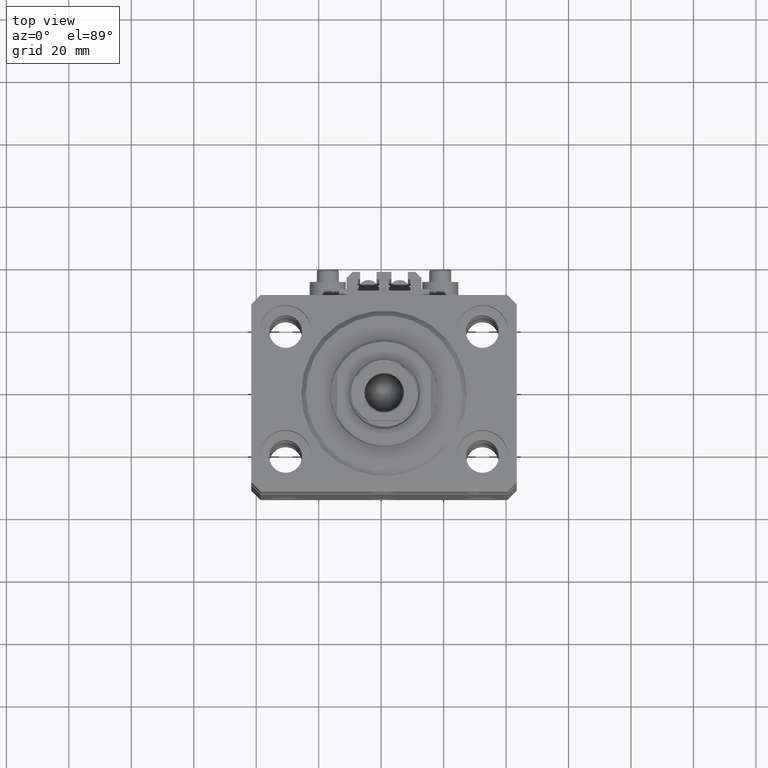
[diagram: clean part render]
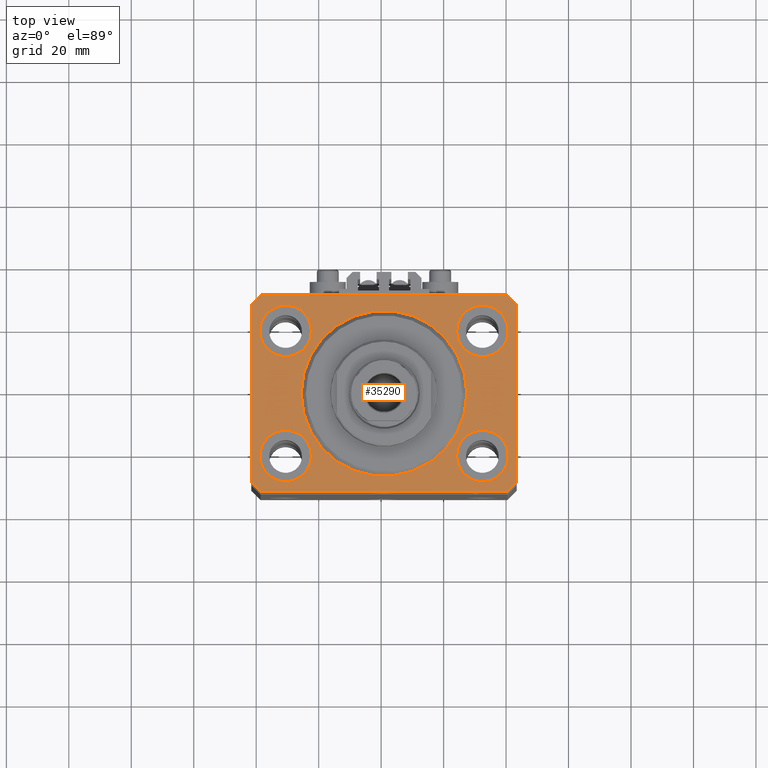
[diagram: same view with one face highlighted and labeled with its STEP entity id]
A machine part, top view. The second image highlights one B-rep face of the part: STEP entity #35290.
In plain terms, the highlighted planar face has unit normal (0, 0, 1).
Its self-contained STEP definition (entity closure, byte-faithful):
#519 = CARTESIAN_POINT ( 'NONE',  ( 31.50000000000000000, -20.00000000000000000, 0.000000000000000000 ) ) ;
#1151 = AXIS2_PLACEMENT_3D ( 'NONE', #25544, #21576, #22075 ) ;
#1292 = CIRCLE ( 'NONE', #33673, 8.250000000000000000 ) ;
#1336 = LINE ( 'NONE', #26042, #22604 ) ;
#1421 = EDGE_CURVE ( 'NONE', #11246, #47351, #35845, .T. ) ;
#1767 = CIRCLE ( 'NONE', #14392, 26.50000000000000355 ) ;
#1924 = VERTEX_POINT ( 'NONE', #16424 ) ;
#2061 = CARTESIAN_POINT ( 'NONE',  ( 31.50000000000000000, 20.00000000000001066, 0.000000000000000000 ) ) ;
#2173 = CARTESIAN_POINT ( 'NONE',  ( -39.50000000000000711, 31.50000000000000000, 0.000000000000000000 ) ) ;
#2760 = CIRCLE ( 'NONE', #1151, 26.50000000000000355 ) ;
#2911 = EDGE_CURVE ( 'NONE', #42928, #13611, #33340, .T. ) ;
#3748 = ORIENTED_EDGE ( 'NONE', *, *, #45577, .T. ) ;
#3991 = FACE_BOUND ( 'NONE', #20719, .T. ) ;
#4124 = VERTEX_POINT ( 'NONE', #25363 ) ;
#4189 = DIRECTION ( 'NONE',  ( 1.000000000000000000, 0.000000000000000000, 0.000000000000000000 ) ) ;
#4370 = CIRCLE ( 'NONE', #32008, 8.250000000000000000 ) ;
#5180 = AXIS2_PLACEMENT_3D ( 'NONE', #519, #48773, #34156 ) ;
#5618 = DIRECTION ( 'NONE',  ( 0.000000000000000000, 0.000000000000000000, 1.000000000000000000 ) ) ;
#5889 = DIRECTION ( 'NONE',  ( 0.000000000000000000, 0.000000000000000000, 1.000000000000000000 ) ) ;
#6591 = CARTESIAN_POINT ( 'NONE',  ( -39.50000000000000711, 31.50000000000000000, 0.000000000000000000 ) ) ;
#7079 = ORIENTED_EDGE ( 'NONE', *, *, #21873, .T. ) ;
#7458 = CARTESIAN_POINT ( 'NONE',  ( 0.000000000000000000, 0.000000000000000000, 0.000000000000000000 ) ) ;
#7514 = CIRCLE ( 'NONE', #26431, 8.250000000000000000 ) ;
#7927 = DIRECTION ( 'NONE',  ( 0.000000000000000000, 0.000000000000000000, 1.000000000000000000 ) ) ;
#8019 = CARTESIAN_POINT ( 'NONE',  ( 42.50000000000051870, 28.49999999999995381, 0.000000000000000000 ) ) ;
#8051 = DIRECTION ( 'NONE',  ( 1.000000000000000000, 0.000000000000000000, 0.000000000000000000 ) ) ;
#8426 = EDGE_CURVE ( 'NONE', #35584, #1924, #1292, .T. ) ;
#8772 = CARTESIAN_POINT ( 'NONE',  ( 0.000000000000000000, 0.000000000000000000, 0.000000000000000000 ) ) ;
#8822 = DIRECTION ( 'NONE',  ( 1.000000000000000000, 0.000000000000000000, 0.000000000000000000 ) ) ;
#9591 = VERTEX_POINT ( 'NONE', #47883 ) ;
#9618 = AXIS2_PLACEMENT_3D ( 'NONE', #43730, #32354, #35326 ) ;
#10281 = EDGE_LOOP ( 'NONE', ( #21100, #32350, #19455, #46652, #3748, #7079, #23217, #25690 ) ) ;
#10334 = VERTEX_POINT ( 'NONE', #42300 ) ;
#10509 = EDGE_LOOP ( 'NONE', ( #37493, #29340 ) ) ;
#11246 = VERTEX_POINT ( 'NONE', #24214 ) ;
#12115 = FACE_BOUND ( 'NONE', #46352, .T. ) ;
#13251 = ORIENTED_EDGE ( 'NONE', *, *, #8426, .F. ) ;
#13491 = VERTEX_POINT ( 'NONE', #26677 ) ;
#13611 = VERTEX_POINT ( 'NONE', #32777 ) ;
#14392 = AXIS2_PLACEMENT_3D ( 'NONE', #8772, #19894, #8051 ) ;
#14503 = DIRECTION ( 'NONE',  ( -1.000000000000000000, 0.000000000000000000, 0.000000000000000000 ) ) ;
#16133 = AXIS2_PLACEMENT_3D ( 'NONE', #2061, #32223, #47317 ) ;
#16424 = CARTESIAN_POINT ( 'NONE',  ( -23.25000000000000000, 20.00000000000000000, 0.000000000000000000 ) ) ;
#16544 = CARTESIAN_POINT ( 'NONE',  ( 42.50000000000000711, -28.50000000000000355, 0.000000000000000000 ) ) ;
#16978 = CARTESIAN_POINT ( 'NONE',  ( -31.50000000000000000, -20.00000000000000000, 0.000000000000000000 ) ) ;
#17213 = DIRECTION ( 'NONE',  ( -0.7071067811865471286, -0.7071067811865479058, 0.000000000000000000 ) ) ;
#17266 = LINE ( 'NONE', #17518, #27001 ) ;
#17432 = VERTEX_POINT ( 'NONE', #6591 ) ;
#17518 = CARTESIAN_POINT ( 'NONE',  ( 39.50000000000000711, -31.50000000000000000, 0.000000000000000000 ) ) ;
#17613 = ORIENTED_EDGE ( 'NONE', *, *, #2911, .F. ) ;
#18809 = EDGE_CURVE ( 'NONE', #30530, #19125, #48248, .T. ) ;
#19125 = VERTEX_POINT ( 'NONE', #43121 ) ;
#19455 = ORIENTED_EDGE ( 'NONE', *, *, #1421, .T. ) ;
#19894 = DIRECTION ( 'NONE',  ( 0.000000000000000000, 0.000000000000000000, 1.000000000000000000 ) ) ;
#19926 = ORIENTED_EDGE ( 'NONE', *, *, #44597, .F. ) ;
#20719 = EDGE_LOOP ( 'NONE', ( #25933, #13251 ) ) ;
#20855 = VERTEX_POINT ( 'NONE', #48695 ) ;
#21045 = ORIENTED_EDGE ( 'NONE', *, *, #34397, .F. ) ;
#21100 = ORIENTED_EDGE ( 'NONE', *, *, #26649, .T. ) ;
#21576 = DIRECTION ( 'NONE',  ( 0.000000000000000000, 0.000000000000000000, 1.000000000000000000 ) ) ;
#21769 = AXIS2_PLACEMENT_3D ( 'NONE', #25342, #33279, #37219 ) ;
#21873 = EDGE_CURVE ( 'NONE', #20855, #13491, #17266, .T. ) ;
#22075 = DIRECTION ( 'NONE',  ( 1.000000000000000000, 0.000000000000000000, 0.000000000000000000 ) ) ;
#22378 = DIRECTION ( 'NONE',  ( -0.7071067811865356934, 0.7071067811865594521, 0.000000000000000000 ) ) ;
#22413 = LINE ( 'NONE', #33577, #27172 ) ;
#22483 = CARTESIAN_POINT ( 'NONE',  ( -31.50000000000000000, -20.00000000000000000, 0.000000000000000000 ) ) ;
#22604 = VECTOR ( 'NONE', #40655, 1000.000000000000000 ) ;
#22635 = EDGE_LOOP ( 'NONE', ( #21045, #17613 ) ) ;
#22772 = PLANE ( 'NONE',  #35339 ) ;
#23217 = ORIENTED_EDGE ( 'NONE', *, *, #43770, .T. ) ;
#23316 = VECTOR ( 'NONE', #47656, 1000.000000000000000 ) ;
#23346 = EDGE_CURVE ( 'NONE', #29146, #9591, #1767, .T. ) ;
#24116 = CIRCLE ( 'NONE', #21769, 8.249999999999992895 ) ;
#24214 = CARTESIAN_POINT ( 'NONE',  ( -42.50000000000000000, 28.50000000000000000, 0.000000000000000000 ) ) ;
#24706 = CARTESIAN_POINT ( 'NONE',  ( -42.50000000000000000, 28.50000000000000000, 0.000000000000000000 ) ) ;
#25342 = CARTESIAN_POINT ( 'NONE',  ( 31.50000000000000000, 20.00000000000001066, 0.000000000000000000 ) ) ;
#25363 = CARTESIAN_POINT ( 'NONE',  ( 23.25000000000000355, 20.00000000000001066, 0.000000000000000000 ) ) ;
#25544 = CARTESIAN_POINT ( 'NONE',  ( 0.000000000000000000, 0.000000000000000000, 0.000000000000000000 ) ) ;
#25626 = CARTESIAN_POINT ( 'NONE',  ( -42.50000000000000000, -28.50000000000000000, 0.000000000000000000 ) ) ;
#25690 = ORIENTED_EDGE ( 'NONE', *, *, #48270, .T. ) ;
#25933 = ORIENTED_EDGE ( 'NONE', *, *, #33468, .F. ) ;
#26042 = CARTESIAN_POINT ( 'NONE',  ( -39.50000000000000711, -31.50000000000000000, 0.000000000000000000 ) ) ;
#26234 = DIRECTION ( 'NONE',  ( 1.000000000000000000, 0.000000000000000000, 0.000000000000000000 ) ) ;
#26431 = AXIS2_PLACEMENT_3D ( 'NONE', #22483, #38322, #4189 ) ;
#26649 = EDGE_CURVE ( 'NONE', #34701, #17432, #22413, .T. ) ;
#26677 = CARTESIAN_POINT ( 'NONE',  ( 42.50000000000000711, -28.50000000000000355, 0.000000000000000000 ) ) ;
#26711 = EDGE_LOOP ( 'NONE', ( #19926, #36304 ) ) ;
#26970 = FACE_BOUND ( 'NONE', #26711, .T. ) ;
#27001 = VECTOR ( 'NONE', #32384, 1000.000000000000000 ) ;
#27172 = VECTOR ( 'NONE', #14503, 1000.000000000000000 ) ;
#27987 = EDGE_CURVE ( 'NONE', #4124, #10334, #36691, .T. ) ;
#28211 = CARTESIAN_POINT ( 'NONE',  ( 42.50000000000051870, 28.49999999999995381, 0.000000000000000000 ) ) ;
#29146 = VERTEX_POINT ( 'NONE', #45801 ) ;
#29234 = VERTEX_POINT ( 'NONE', #28211 ) ;
#29340 = ORIENTED_EDGE ( 'NONE', *, *, #18809, .F. ) ;
#29452 = EDGE_CURVE ( 'NONE', #19125, #30530, #7514, .T. ) ;
#29710 = DIRECTION ( 'NONE',  ( 0.000000000000000000, 0.000000000000000000, 1.000000000000000000 ) ) ;
#29814 = LINE ( 'NONE', #8019, #39310 ) ;
#30131 = VECTOR ( 'NONE', #32379, 1000.000000000000000 ) ;
#30530 = VERTEX_POINT ( 'NONE', #44150 ) ;
#32008 = AXIS2_PLACEMENT_3D ( 'NONE', #48766, #29710, #26234 ) ;
#32223 = DIRECTION ( 'NONE',  ( 0.000000000000000000, 0.000000000000000000, 1.000000000000000000 ) ) ;
#32350 = ORIENTED_EDGE ( 'NONE', *, *, #44123, .T. ) ;
#32354 = DIRECTION ( 'NONE',  ( 0.000000000000000000, 0.000000000000000000, 1.000000000000000000 ) ) ;
#32379 = DIRECTION ( 'NONE',  ( 0.000000000000000000, -1.000000000000000000, 0.000000000000000000 ) ) ;
#32384 = DIRECTION ( 'NONE',  ( 0.7071067811865483499, 0.7071067811865466846, 0.000000000000000000 ) ) ;
#32777 = CARTESIAN_POINT ( 'NONE',  ( 39.74999999999999289, -20.00000000000000000, 0.000000000000000000 ) ) ;
#32805 = EDGE_CURVE ( 'NONE', #47351, #37733, #39984, .T. ) ;
#33279 = DIRECTION ( 'NONE',  ( 0.000000000000000000, 0.000000000000000000, 1.000000000000000000 ) ) ;
#33340 = CIRCLE ( 'NONE', #9618, 8.249999999999992895 ) ;
#33468 = EDGE_CURVE ( 'NONE', #1924, #35584, #4370, .T. ) ;
#33577 = CARTESIAN_POINT ( 'NONE',  ( 39.50000000000056843, 31.50000000000000000, 0.000000000000000000 ) ) ;
#33673 = AXIS2_PLACEMENT_3D ( 'NONE', #46683, #5618, #8822 ) ;
#33927 = FACE_BOUND ( 'NONE', #10509, .T. ) ;
#34156 = DIRECTION ( 'NONE',  ( 1.000000000000000000, 0.000000000000000000, 0.000000000000000000 ) ) ;
#34397 = EDGE_CURVE ( 'NONE', #13611, #42928, #39139, .T. ) ;
#34701 = VERTEX_POINT ( 'NONE', #45462 ) ;
#35157 = CARTESIAN_POINT ( 'NONE',  ( -42.50000000000000000, -28.50000000000000000, 0.000000000000000000 ) ) ;
#35290 = ADVANCED_FACE ( 'NONE', ( #33927, #37865, #26970, #3991, #12115, #41343 ), #22772, .T. ) ;
#35326 = DIRECTION ( 'NONE',  ( 1.000000000000000000, 0.000000000000000000, 0.000000000000000000 ) ) ;
#35339 = AXIS2_PLACEMENT_3D ( 'NONE', #7458, #7927, #38109 ) ;
#35584 = VERTEX_POINT ( 'NONE', #47549 ) ;
#35845 = LINE ( 'NONE', #24706, #30131 ) ;
#36040 = LINE ( 'NONE', #2173, #39956 ) ;
#36054 = DIRECTION ( 'NONE',  ( 1.000000000000000000, 0.000000000000000000, 0.000000000000000000 ) ) ;
#36105 = DIRECTION ( 'NONE',  ( 8.886653596232072440E-15, 1.000000000000000000, 0.000000000000000000 ) ) ;
#36304 = ORIENTED_EDGE ( 'NONE', *, *, #27987, .F. ) ;
#36691 = CIRCLE ( 'NONE', #16133, 8.249999999999992895 ) ;
#36862 = CARTESIAN_POINT ( 'NONE',  ( -39.50000000000000711, -31.50000000000000000, 0.000000000000000000 ) ) ;
#37219 = DIRECTION ( 'NONE',  ( 1.000000000000000000, 0.000000000000000000, 0.000000000000000000 ) ) ;
#37493 = ORIENTED_EDGE ( 'NONE', *, *, #29452, .F. ) ;
#37733 = VERTEX_POINT ( 'NONE', #36862 ) ;
#37865 = FACE_BOUND ( 'NONE', #22635, .T. ) ;
#38109 = DIRECTION ( 'NONE',  ( 1.000000000000000000, 0.000000000000000000, -0.000000000000000000 ) ) ;
#38322 = DIRECTION ( 'NONE',  ( 0.000000000000000000, 0.000000000000000000, 1.000000000000000000 ) ) ;
#38837 = AXIS2_PLACEMENT_3D ( 'NONE', #16978, #5889, #36054 ) ;
#39139 = CIRCLE ( 'NONE', #5180, 8.249999999999992895 ) ;
#39310 = VECTOR ( 'NONE', #22378, 1000.000000000000114 ) ;
#39956 = VECTOR ( 'NONE', #17213, 1000.000000000000000 ) ;
#39984 = LINE ( 'NONE', #25626, #23316 ) ;
#40655 = DIRECTION ( 'NONE',  ( 1.000000000000000000, 0.000000000000000000, 0.000000000000000000 ) ) ;
#41343 = FACE_OUTER_BOUND ( 'NONE', #10281, .T. ) ;
#41556 = CARTESIAN_POINT ( 'NONE',  ( 23.25000000000000355, -20.00000000000000000, 0.000000000000000000 ) ) ;
#41843 = EDGE_CURVE ( 'NONE', #9591, #29146, #2760, .T. ) ;
#41983 = ORIENTED_EDGE ( 'NONE', *, *, #41843, .F. ) ;
#42300 = CARTESIAN_POINT ( 'NONE',  ( 39.74999999999999289, 20.00000000000001066, 0.000000000000000000 ) ) ;
#42892 = ORIENTED_EDGE ( 'NONE', *, *, #23346, .F. ) ;
#42928 = VERTEX_POINT ( 'NONE', #41556 ) ;
#43121 = CARTESIAN_POINT ( 'NONE',  ( -23.25000000000000000, -20.00000000000000000, 0.000000000000000000 ) ) ;
#43730 = CARTESIAN_POINT ( 'NONE',  ( 31.50000000000000000, -20.00000000000000000, 0.000000000000000000 ) ) ;
#43770 = EDGE_CURVE ( 'NONE', #13491, #29234, #47253, .T. ) ;
#44123 = EDGE_CURVE ( 'NONE', #17432, #11246, #36040, .T. ) ;
#44150 = CARTESIAN_POINT ( 'NONE',  ( -39.75000000000000000, -20.00000000000000000, 0.000000000000000000 ) ) ;
#44597 = EDGE_CURVE ( 'NONE', #10334, #4124, #24116, .T. ) ;
#44660 = VECTOR ( 'NONE', #36105, 1000.000000000000000 ) ;
#45462 = CARTESIAN_POINT ( 'NONE',  ( 39.50000000000056843, 31.50000000000000000, 0.000000000000000000 ) ) ;
#45577 = EDGE_CURVE ( 'NONE', #37733, #20855, #1336, .T. ) ;
#45801 = CARTESIAN_POINT ( 'NONE',  ( 26.50000000000000355, 0.000000000000000000, 0.000000000000000000 ) ) ;
#46352 = EDGE_LOOP ( 'NONE', ( #42892, #41983 ) ) ;
#46652 = ORIENTED_EDGE ( 'NONE', *, *, #32805, .T. ) ;
#46683 = CARTESIAN_POINT ( 'NONE',  ( -31.50000000000000000, 20.00000000000000000, 0.000000000000000000 ) ) ;
#47253 = LINE ( 'NONE', #16544, #44660 ) ;
#47317 = DIRECTION ( 'NONE',  ( 1.000000000000000000, 0.000000000000000000, 0.000000000000000000 ) ) ;
#47351 = VERTEX_POINT ( 'NONE', #35157 ) ;
#47549 = CARTESIAN_POINT ( 'NONE',  ( -39.75000000000000000, 20.00000000000000000, 0.000000000000000000 ) ) ;
#47656 = DIRECTION ( 'NONE',  ( 0.7071067811865471286, -0.7071067811865479058, 0.000000000000000000 ) ) ;
#47883 = CARTESIAN_POINT ( 'NONE',  ( -26.50000000000000355, 3.245314017740486554E-15, 0.000000000000000000 ) ) ;
#48248 = CIRCLE ( 'NONE', #38837, 8.250000000000000000 ) ;
#48270 = EDGE_CURVE ( 'NONE', #29234, #34701, #29814, .T. ) ;
#48695 = CARTESIAN_POINT ( 'NONE',  ( 39.50000000000000711, -31.50000000000000000, 0.000000000000000000 ) ) ;
#48766 = CARTESIAN_POINT ( 'NONE',  ( -31.50000000000000000, 20.00000000000000000, 0.000000000000000000 ) ) ;
#48773 = DIRECTION ( 'NONE',  ( 0.000000000000000000, 0.000000000000000000, 1.000000000000000000 ) ) ;